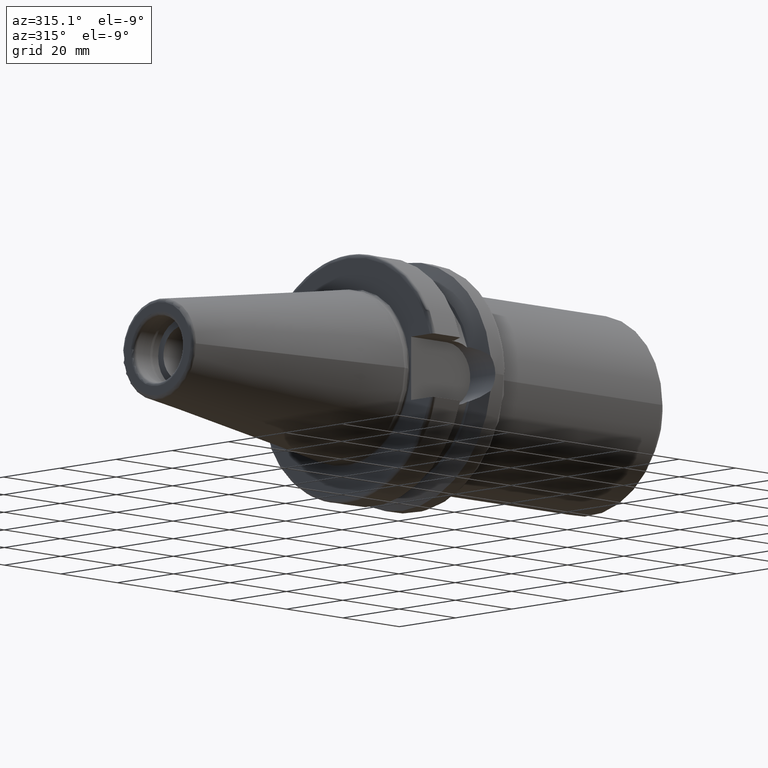
[diagram: clean part render]
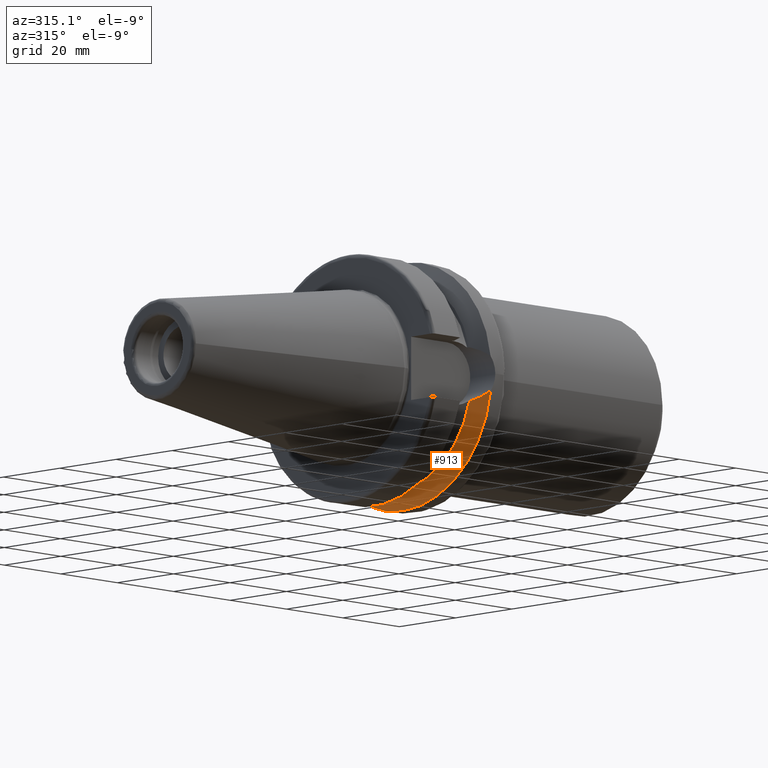
[diagram: same view with one face highlighted and labeled with its STEP entity id]
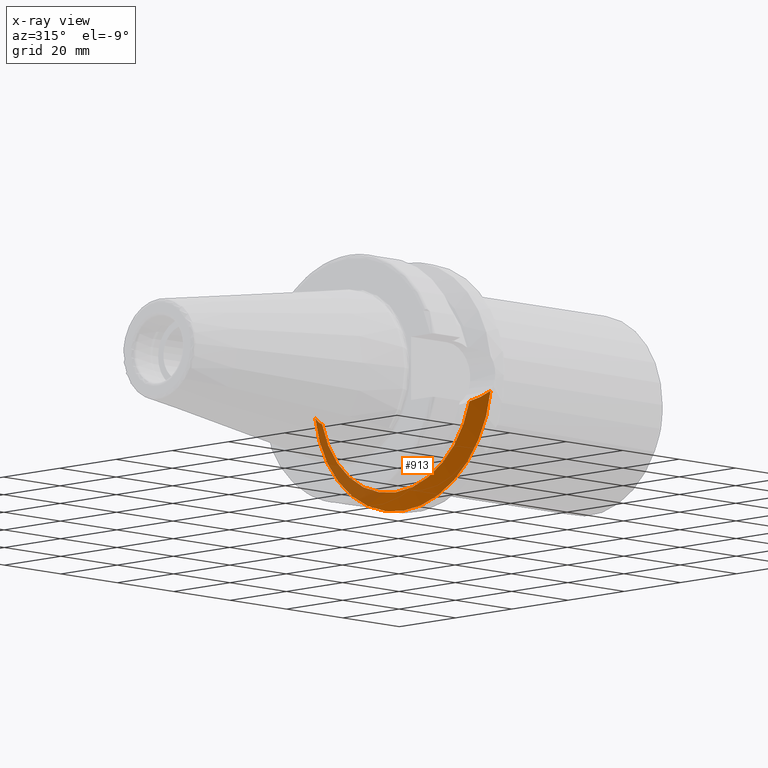
[diagram: x-ray of the same camera — body ghosted, the highlighted face saturated]
A machine part, auxiliary view. The second image highlights one B-rep face of the part: STEP entity #913.
The next image is the same camera in x-ray: the body ghosted, the highlighted face saturated — about 24% of this face is hidden behind the body in this view.
In plain terms, the highlighted conical surface has half-angle 60.125 deg.
Its self-contained STEP definition (entity closure, byte-faithful):
#23=CONICAL_SURFACE('',#1019,29.2970358274569,1.0493792127616);
#39=B_SPLINE_CURVE_WITH_KNOTS('',3,(#1932,#1933,#1934,#1935,#1936,#1937),
 .UNSPECIFIED.,.F.,.F.,(4,2,4),(3.12975744792551,3.6269928875698,3.7084873746139),
 .UNSPECIFIED.);
#47=B_SPLINE_CURVE_WITH_KNOTS('',3,(#2048,#2049,#2050,#2051,#2052,#2053),
 .UNSPECIFIED.,.F.,.F.,(4,2,4),(1.46421027899563,1.54570476603974,2.04294020568402),
 .UNSPECIFIED.);
#217=FACE_OUTER_BOUND('',#281,.T.);
#281=EDGE_LOOP('',(#729,#730,#731,#732));
#342=CIRCLE('',#1016,31.5);
#345=CIRCLE('',#1020,27.0940716549138);
#409=VERTEX_POINT('',#1929);
#410=VERTEX_POINT('',#1931);
#432=VERTEX_POINT('',#2030);
#434=VERTEX_POINT('',#2046);
#513=EDGE_CURVE('',#410,#409,#39,.T.);
#539=EDGE_CURVE('',#410,#432,#342,.T.);
#543=EDGE_CURVE('',#409,#434,#345,.T.);
#544=EDGE_CURVE('',#434,#432,#47,.T.);
#729=ORIENTED_EDGE('',*,*,#513,.T.);
#730=ORIENTED_EDGE('',*,*,#543,.T.);
#731=ORIENTED_EDGE('',*,*,#544,.T.);
#732=ORIENTED_EDGE('',*,*,#539,.F.);
#913=ADVANCED_FACE('',(#217),#23,.T.);
#1016=AXIS2_PLACEMENT_3D('',#2031,#1209,#1210);
#1019=AXIS2_PLACEMENT_3D('',#2045,#1215,#1216);
#1020=AXIS2_PLACEMENT_3D('',#2047,#1217,#1218);
#1209=DIRECTION('center_axis',(1.,0.,0.));
#1210=DIRECTION('ref_axis',(0.,0.,-1.));
#1215=DIRECTION('center_axis',(1.,0.,0.));
#1216=DIRECTION('ref_axis',(0.,1.,0.));
#1217=DIRECTION('center_axis',(1.,0.,0.));
#1218=DIRECTION('ref_axis',(0.,0.,-1.));
#1929=CARTESIAN_POINT('',(19.1,-26.201311395455,-6.89782574439221));
#1931=CARTESIAN_POINT('',(21.6309636926618,-31.1782420264945,-4.49079326370462));
#1932=CARTESIAN_POINT('Ctrl Pts',(21.6309636926618,-31.1782420264945,-4.49079326370461));
#1933=CARTESIAN_POINT('Ctrl Pts',(20.9728756148302,-29.8797957262939,-5.46983244373119));
#1934=CARTESIAN_POINT('Ctrl Pts',(20.1784155384866,-28.3157123387483,-6.1823136897693));
#1935=CARTESIAN_POINT('Ctrl Pts',(19.3406963650696,-26.6728819297427,-6.74867108656043));
#1936=CARTESIAN_POINT('Ctrl Pts',(19.2210929544554,-26.438473693351,-6.82497151762397));
#1937=CARTESIAN_POINT('Ctrl Pts',(19.1,-26.201311395455,-6.89782574439222));
#2030=CARTESIAN_POINT('',(21.6309636926618,31.1782420264945,-4.49079326370462));
#2031=CARTESIAN_POINT('Origin',(21.6309636926618,0.,0.));
#2045=CARTESIAN_POINT('Origin',(20.3654818463309,0.,0.));
#2046=CARTESIAN_POINT('',(19.1,26.201311395455,-6.89782574439221));
#2047=CARTESIAN_POINT('Origin',(19.1,0.,0.));
#2048=CARTESIAN_POINT('Ctrl Pts',(19.1,26.201311395455,-6.89782574439221));
#2049=CARTESIAN_POINT('Ctrl Pts',(19.2210929544554,26.438473693351,-6.82497151762396));
#2050=CARTESIAN_POINT('Ctrl Pts',(19.3406963650696,26.6728819297427,-6.74867108656043));
#2051=CARTESIAN_POINT('Ctrl Pts',(20.1784155384866,28.3157123387483,-6.1823136897693));
#2052=CARTESIAN_POINT('Ctrl Pts',(20.9728756148302,29.8797957262938,-5.46983244373119));
#2053=CARTESIAN_POINT('Ctrl Pts',(21.6309636926618,31.1782420264945,-4.49079326370462));